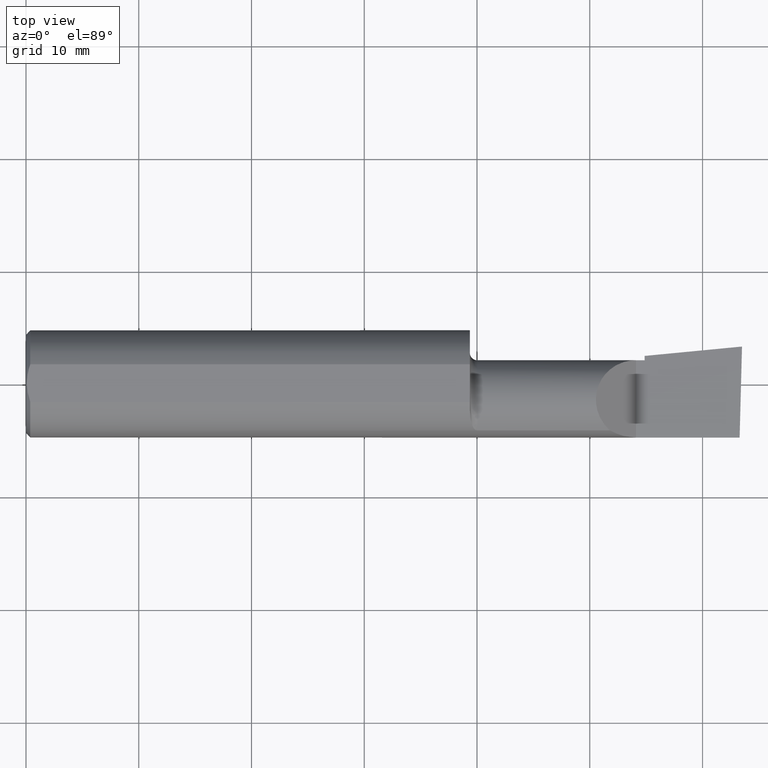
[diagram: clean part render]
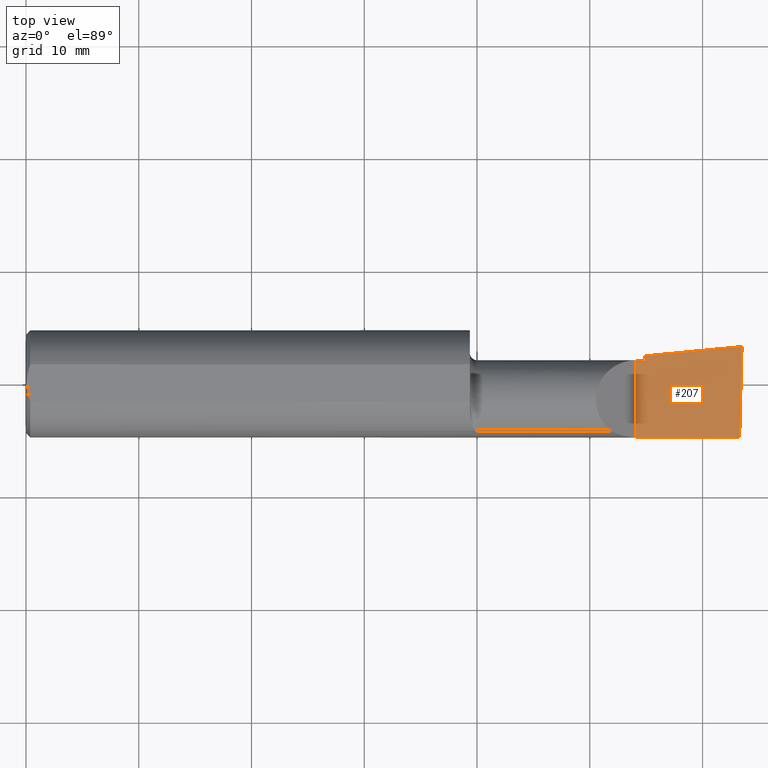
[diagram: same view with one face highlighted and labeled with its STEP entity id]
A machine part, top view. The second image highlights one B-rep face of the part: STEP entity #207.
In plain terms, the highlighted planar face has unit normal (-0, 0, -1).
Its self-contained STEP definition (entity closure, byte-faithful):
#2 = LINE ( 'NONE', #202, #269 ) ;
#11 = FACE_OUTER_BOUND ( 'NONE', #177, .T. ) ;
#13 = DIRECTION ( 'NONE',  ( -0.0000000000000000000, 1.000000000000000000, -0.0000000000000000000 ) ) ;
#15 = CARTESIAN_POINT ( 'NONE',  ( 2.160000000000000142, 0.09791172361284176950, 3.244069492476312449E-16 ) ) ;
#62 = CARTESIAN_POINT ( 'NONE',  ( 0.5470260790800316464, -0.05740000000000000657, 2.701812985571356346E-16 ) ) ;
#70 = DIRECTION ( 'NONE',  ( -1.000000000000000000, -0.0000000000000000000, -0.0000000000000000000 ) ) ;
#71 = CARTESIAN_POINT ( 'NONE',  ( 2.160000000000000142, -0.2500000000000000555, 1.034430765243970311E-16 ) ) ;
#81 = CARTESIAN_POINT ( 'NONE',  ( 2.129999999999999893, -0.2500000000000000555, 1.065442715258197396E-16 ) ) ;
#83 = CARTESIAN_POINT ( 'NONE',  ( 2.129999999999999893, 0.08264999999999983471, 1.065442715258197396E-16 ) ) ;
#84 = LINE ( 'NONE', #71, #596 ) ;
#89 = ORIENTED_EDGE ( 'NONE', *, *, #97, .T. ) ;
#97 = EDGE_CURVE ( 'NONE', #271, #474, #139, .T. ) ;
#112 = DIRECTION ( 'NONE',  ( 1.000000000000000000, 6.829619984160658046E-18, 0.0000000000000000000 ) ) ;
#118 = DIRECTION ( 'NONE',  ( -6.829619984160658816E-18, 1.000000000000000000, 7.059994452165177242E-34 ) ) ;
#119 = CARTESIAN_POINT ( 'NONE',  ( 2.500000000000000000, -0.2500000000000000555, 6.829619984160658046E-17 ) ) ;
#139 = LINE ( 'NONE', #377, #174 ) ;
#154 = DIRECTION ( 'NONE',  ( 0.9953961983671787417, 0.09584575252022459191, -1.028972571603813720E-16 ) ) ;
#171 = CARTESIAN_POINT ( 'NONE',  ( 2.491672876940991710, -0.1873499999999999888, 6.915950918908297591E-17 ) ) ;
#174 = VECTOR ( 'NONE', #250, 39.37007874015748854 ) ;
#177 = EDGE_LOOP ( 'NONE', ( #509, #89, #396, #355, #400, #390 ) ) ;
#202 = CARTESIAN_POINT ( 'NONE',  ( 3.377502344341257155E-32, -0.1873499999999999610, 3.267291166268304703E-16 ) ) ;
#206 = LINE ( 'NONE', #331, #399 ) ;
#207 = ADVANCED_FACE ( 'NONE', ( #11 ), #218, .F. ) ;
#210 = LINE ( 'NONE', #62, #336 ) ;
#218 = PLANE ( 'NONE',  #315 ) ;
#230 = VECTOR ( 'NONE', #13, 39.37007874015748143 ) ;
#250 = DIRECTION ( 'NONE',  ( 0.02617694830779364323, 0.9996573249755593693, -2.665804247635780349E-18 ) ) ;
#257 = VERTEX_POINT ( 'NONE', #15 ) ;
#265 = EDGE_CURVE ( 'NONE', #271, #567, #2, .T. ) ;
#269 = VECTOR ( 'NONE', #70, 39.37007874015748143 ) ;
#271 = VERTEX_POINT ( 'NONE', #171 ) ;
#289 = VERTEX_POINT ( 'NONE', #83 ) ;
#298 = EDGE_CURVE ( 'NONE', #366, #257, #84, .T. ) ;
#315 = AXIS2_PLACEMENT_3D ( 'NONE', #119, #325, #361 ) ;
#325 = DIRECTION ( 'NONE',  ( -1.033731667140896077E-16, 0.0000000000000000000, -1.000000000000000000 ) ) ;
#331 = CARTESIAN_POINT ( 'NONE',  ( -9.564882787816662316E-19, 0.08264999999999995961, 3.267291166268304703E-16 ) ) ;
#336 = VECTOR ( 'NONE', #154, 39.37007874015748143 ) ;
#352 = CARTESIAN_POINT ( 'NONE',  ( 2.129999999999999893, -0.1873499999999999888, 1.065442715258197396E-16 ) ) ;
#355 = ORIENTED_EDGE ( 'NONE', *, *, #298, .F. ) ;
#361 = DIRECTION ( 'NONE',  ( -1.000000000000000000, 0.0000000000000000000, 1.033731667140896077E-16 ) ) ;
#366 = VERTEX_POINT ( 'NONE', #419 ) ;
#377 = CARTESIAN_POINT ( 'NONE',  ( 2.490039159128059953, -0.2497391662021650194, 6.932588350567417155E-17 ) ) ;
#390 = ORIENTED_EDGE ( 'NONE', *, *, #562, .F. ) ;
#396 = ORIENTED_EDGE ( 'NONE', *, *, #549, .F. ) ;
#399 = VECTOR ( 'NONE', #112, 39.37007874015748143 ) ;
#400 = ORIENTED_EDGE ( 'NONE', *, *, #456, .F. ) ;
#419 = CARTESIAN_POINT ( 'NONE',  ( 2.160000000000000142, 0.08265000000000004288, 3.267291166268306182E-16 ) ) ;
#454 = LINE ( 'NONE', #81, #230 ) ;
#456 = EDGE_CURVE ( 'NONE', #289, #366, #206, .T. ) ;
#474 = VERTEX_POINT ( 'NONE', #576 ) ;
#509 = ORIENTED_EDGE ( 'NONE', *, *, #265, .F. ) ;
#549 = EDGE_CURVE ( 'NONE', #257, #474, #210, .T. ) ;
#562 = EDGE_CURVE ( 'NONE', #567, #289, #454, .T. ) ;
#567 = VERTEX_POINT ( 'NONE', #352 ) ;
#576 = CARTESIAN_POINT ( 'NONE',  ( 2.499999999999978684, 0.1306500000000238582, 8.403340504651490739E-14 ) ) ;
#596 = VECTOR ( 'NONE', #118, 39.37007874015748143 ) ;